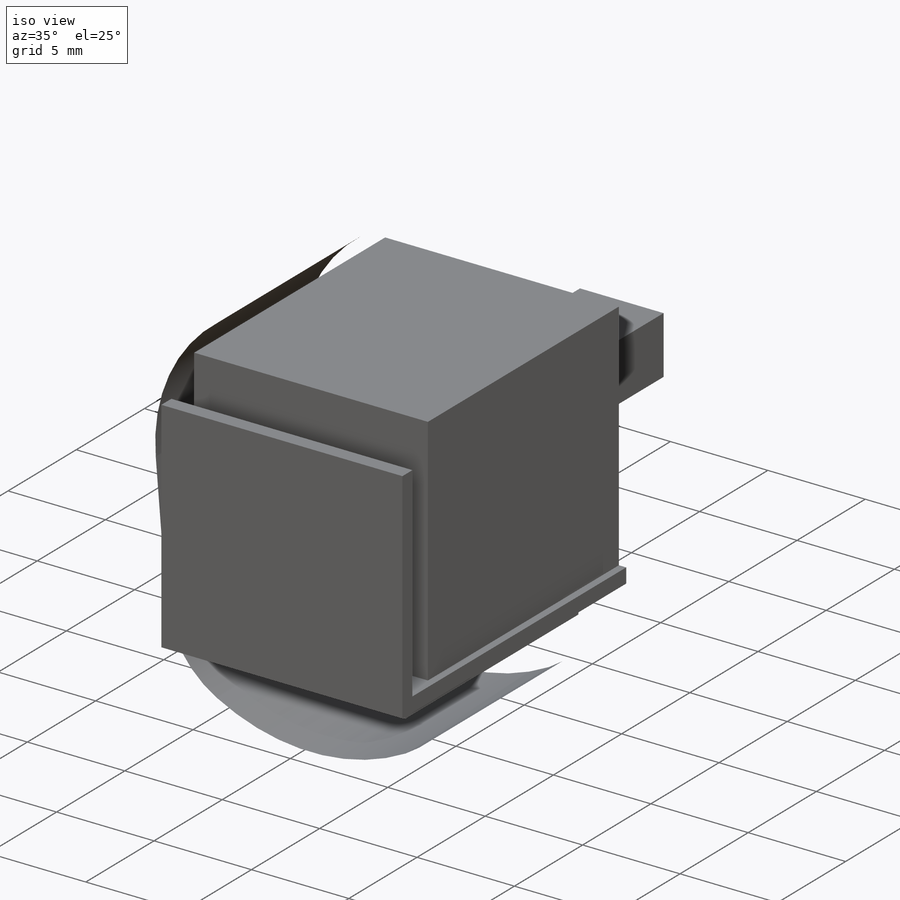
[diagram: iso view]
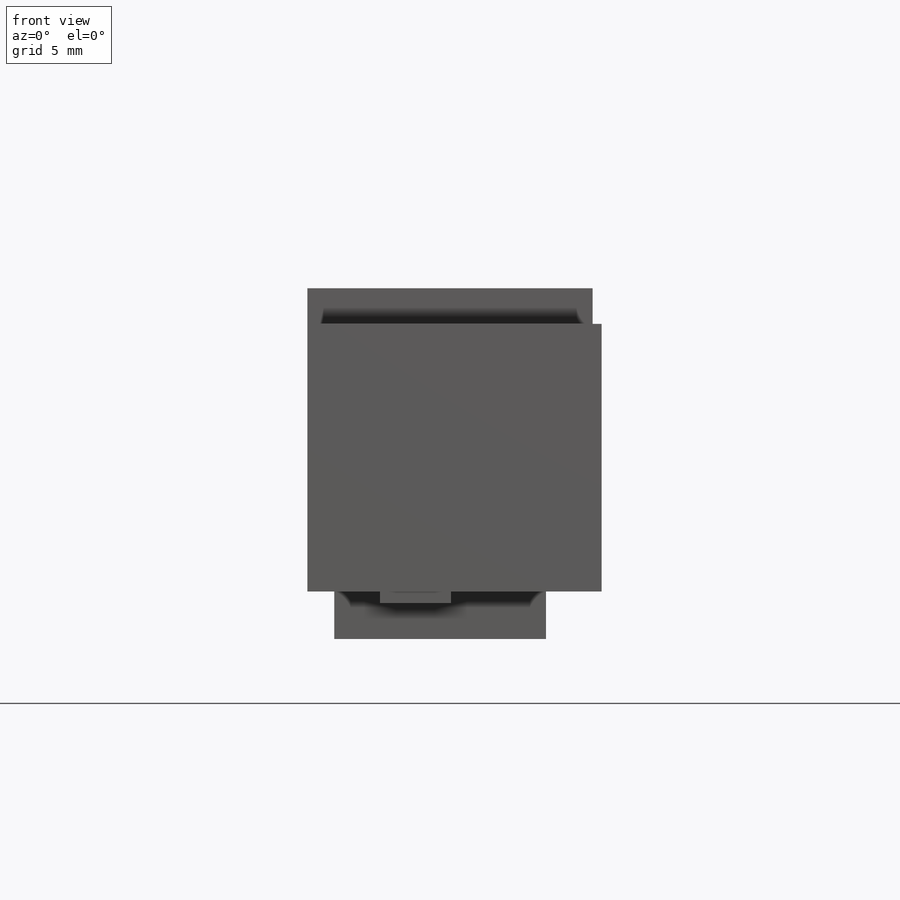
[diagram: front view]
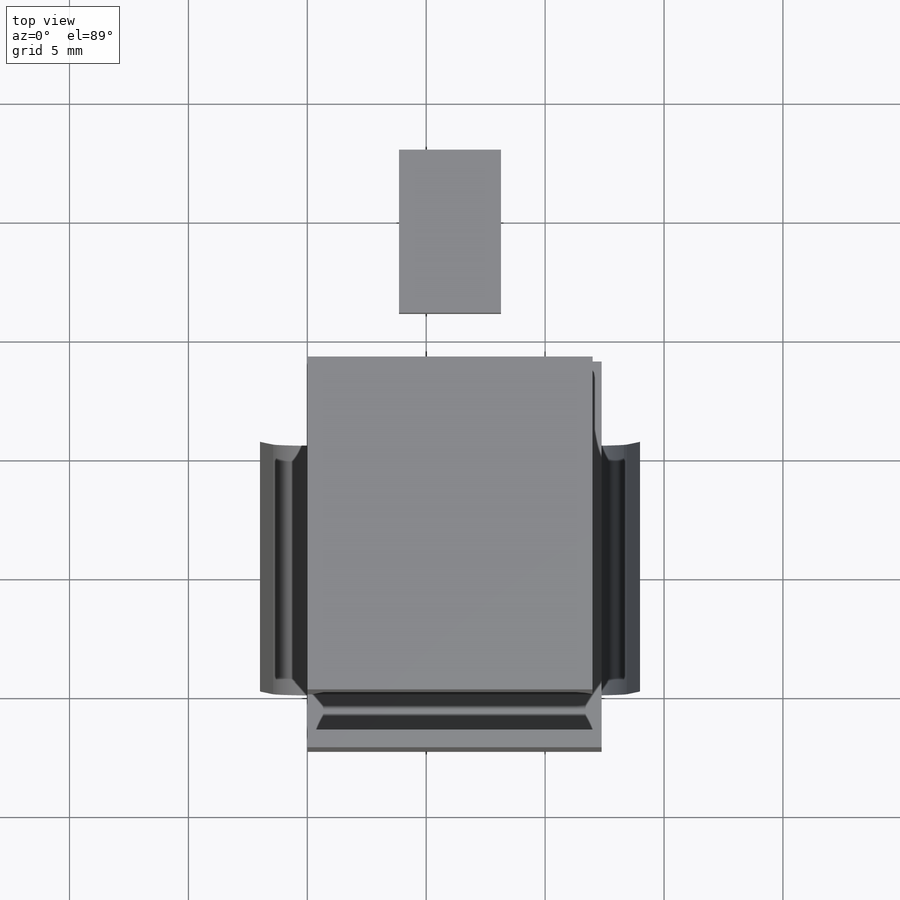
[diagram: top view]
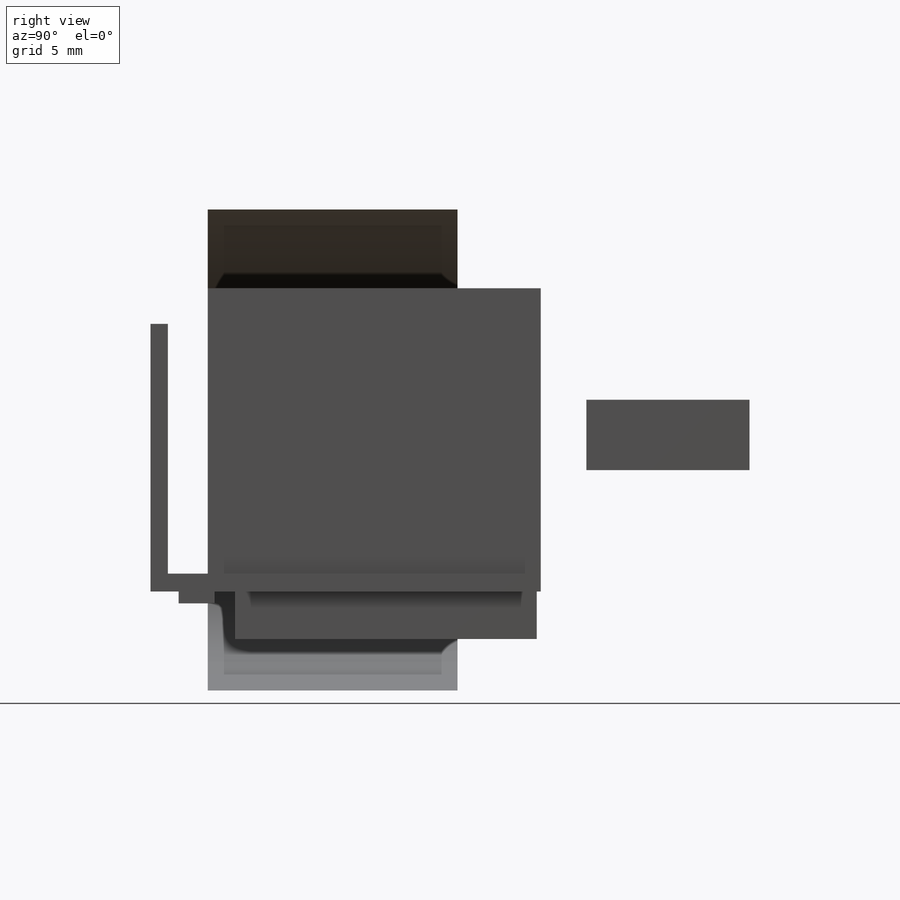
[diagram: right view]
SOLIDWORKS PART (.sldprt)
format: sldprt  version: not decoded by parser v0  size: 227,328 bytes
history: native  units: mm
features: sketch x7, extrude x6, material x1, plane x1, surface_op x1 (+12 scaffold rows collapsed)
feature tree (28):
  scaffold x12  (default folders/planes/origin — collapsed)
  material  "Material <not specified>"
  sketch  "Sketch1"  dims[D1=14.0mm D2=12.0mm]
  extrude  "battery"  Depth=12mm
  plane  "Plane1"  Offset=1.92mm
  sketch  "Sketch2"  dims[D1=4.29mm D2=2.96mm]
  extrude  "driver"  Depth=6.86mm
  sketch  "Sketch10"
  extrude  "PCB "  Depth=0.75mm
  sketch  "Sketch11"  dims[D1=12.7mm D2=8.9mm D3=8.9mm]
  extrude  "KLR device"  Depth=2mm
  sketch  "Sketch9"  dims[D1=16.0mm D2=5.0mm]
  sketch  "Sketch12"  dims[D1=1.5mm D2=3.0mm]
  extrude  "antenna"  Depth=0.5mm
  surface_op  "Surface-Extrude2"
  sketch  "Sketch13"
  extrude  "substrate"  Depth=10.5mm
decode coverage: 11 of 14 modeling features carry decoded parameters
note: suppression state not decoded; provenance and decode notes live in map.json
